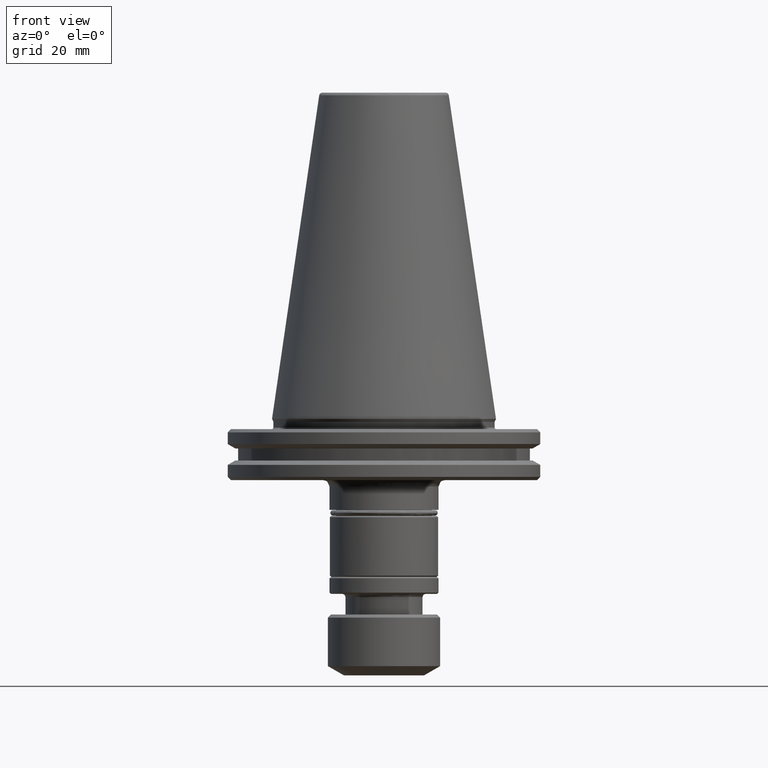
[diagram: clean part render]
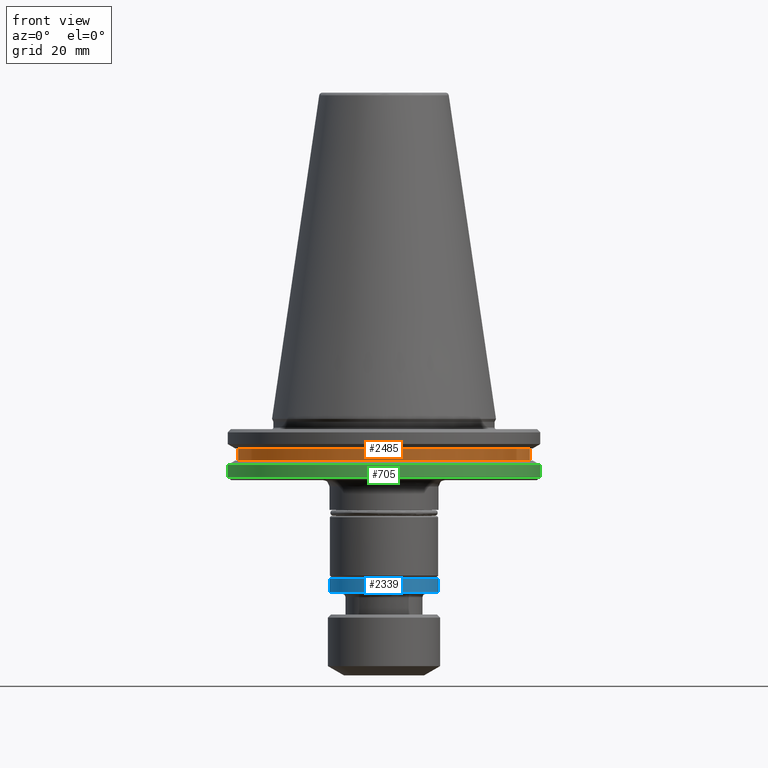
[diagram: same view with three faces highlighted in distinct colors, each labeled with its STEP entity id]
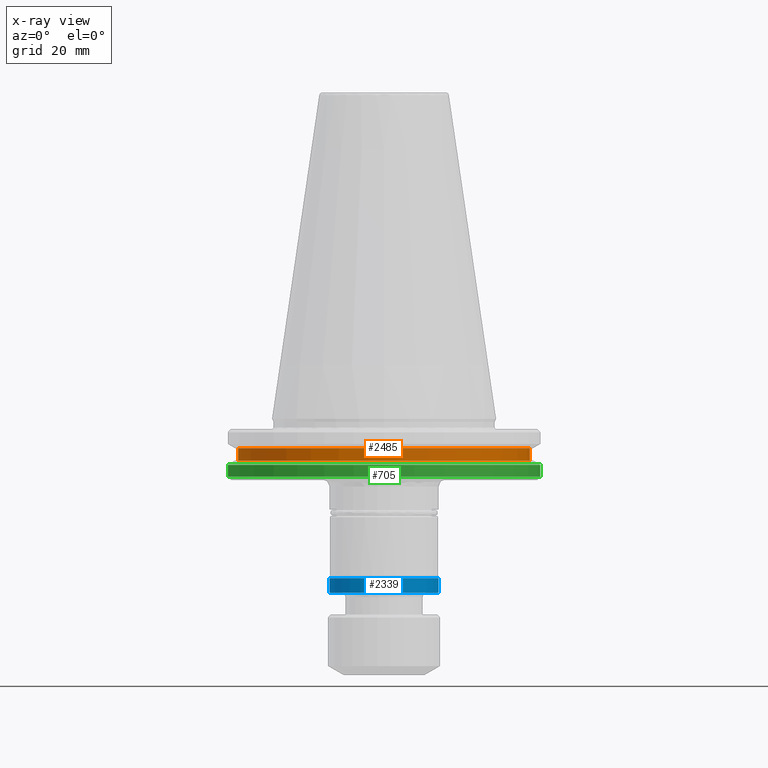
[diagram: x-ray of the same camera — body ghosted, the three highlighted faces saturated]
A machine part, front view with three faces highlighted in distinct colors.
The next image is the same camera in x-ray (body ghosted, the three faces saturated) — at least one of them is partly hidden behind the body in this view.
Their STEP definitions:

[orange] entity #2485 — the highlighted cylindrical surface (partial cylindrical patch) has radius 45.5 mm, axis along (0, 0, 1).
#37 = EDGE_CURVE ( 'NONE', #917, #1226, #1429, .T. ) ;
#168 = ORIENTED_EDGE ( 'NONE', *, *, #1249, .T. ) ;
#201 = LINE ( 'NONE', #1238, #1354 ) ;
#204 = CYLINDRICAL_SURFACE ( 'NONE', #544, 45.50000000000000000 ) ;
#268 = FACE_OUTER_BOUND ( 'NONE', #1695, .T. ) ;
#532 = DIRECTION ( 'NONE',  ( -0.0000000000000000000, -0.0000000000000000000, 1.000000000000000000 ) ) ;
#535 = EDGE_CURVE ( 'NONE', #917, #1349, #1254, .T. ) ;
#536 = DIRECTION ( 'NONE',  ( 1.000000000000000000, 0.0000000000000000000, 0.0000000000000000000 ) ) ;
#544 = AXIS2_PLACEMENT_3D ( 'NONE', #1808, #2478, #1952 ) ;
#568 = CARTESIAN_POINT ( 'NONE',  ( 0.0000000000000000000, 0.0000000000000000000, -12.97499999999995900 ) ) ;
#917 = VERTEX_POINT ( 'NONE', #1628 ) ;
#1160 = CARTESIAN_POINT ( 'NONE',  ( -45.50000000000121500, 5.572142936120605400E-015, -9.224999999999926800 ) ) ;
#1217 = ORIENTED_EDGE ( 'NONE', *, *, #37, .T. ) ;
#1226 = VERTEX_POINT ( 'NONE', #1261 ) ;
#1233 = CARTESIAN_POINT ( 'NONE',  ( 45.50000000000120800, 0.0000000000000000000, -9.224999999999926800 ) ) ;
#1238 = CARTESIAN_POINT ( 'NONE',  ( 45.50000000000000000, 0.0000000000000000000, 113.5216080541959500 ) ) ;
#1243 = DIRECTION ( 'NONE',  ( 0.0000000000000000000, 0.0000000000000000000, 1.000000000000000000 ) ) ;
#1249 = EDGE_CURVE ( 'NONE', #1226, #1270, #201, .T. ) ;
#1254 = LINE ( 'NONE', #2067, #2435 ) ;
#1261 = CARTESIAN_POINT ( 'NONE',  ( 45.50000000000120800, 0.0000000000000000000, -12.97499999999995900 ) ) ;
#1270 = VERTEX_POINT ( 'NONE', #1233 ) ;
#1348 = AXIS2_PLACEMENT_3D ( 'NONE', #2603, #2462, #2453 ) ;
#1349 = VERTEX_POINT ( 'NONE', #1160 ) ;
#1354 = VECTOR ( 'NONE', #1243, 1000.000000000000000 ) ;
#1429 = CIRCLE ( 'NONE', #1877, 45.50000000000120800 ) ;
#1628 = CARTESIAN_POINT ( 'NONE',  ( -45.50000000000121500, 5.572142936120605400E-015, -12.97499999999995900 ) ) ;
#1695 = EDGE_LOOP ( 'NONE', ( #2206, #1217, #168, #1724 ) ) ;
#1724 = ORIENTED_EDGE ( 'NONE', *, *, #2236, .F. ) ;
#1808 = CARTESIAN_POINT ( 'NONE',  ( 0.0000000000000000000, 0.0000000000000000000, 113.5216080541959500 ) ) ;
#1877 = AXIS2_PLACEMENT_3D ( 'NONE', #568, #532, #536 ) ;
#1952 = DIRECTION ( 'NONE',  ( 1.000000000000000000, 0.0000000000000000000, 0.0000000000000000000 ) ) ;
#2065 = DIRECTION ( 'NONE',  ( 0.0000000000000000000, 0.0000000000000000000, 1.000000000000000000 ) ) ;
#2067 = CARTESIAN_POINT ( 'NONE',  ( -45.50000000000000000, 5.572142936120457100E-015, 113.5216080541959500 ) ) ;
#2206 = ORIENTED_EDGE ( 'NONE', *, *, #535, .F. ) ;
#2236 = EDGE_CURVE ( 'NONE', #1349, #1270, #2363, .T. ) ;
#2363 = CIRCLE ( 'NONE', #1348, 45.50000000000120800 ) ;
#2435 = VECTOR ( 'NONE', #2065, 1000.000000000000000 ) ;
#2453 = DIRECTION ( 'NONE',  ( 1.000000000000000000, 0.0000000000000000000, 0.0000000000000000000 ) ) ;
#2462 = DIRECTION ( 'NONE',  ( -0.0000000000000000000, -0.0000000000000000000, 1.000000000000000000 ) ) ;
#2478 = DIRECTION ( 'NONE',  ( 0.0000000000000000000, 0.0000000000000000000, 1.000000000000000000 ) ) ;
#2485 = ADVANCED_FACE ( 'NONE', ( #268 ), #204, .T. ) ;
#2603 = CARTESIAN_POINT ( 'NONE',  ( 0.0000000000000000000, 0.0000000000000000000, -9.224999999999926800 ) ) ;

[blue] entity #2339 — the highlighted cylindrical surface (partial cylindrical patch) has radius 17 mm, axis along (0, 0, 1).
#136 = VERTEX_POINT ( 'NONE', #2509 ) ;
#140 = CIRCLE ( 'NONE', #397, 17.00000000000000000 ) ;
#166 = ORIENTED_EDGE ( 'NONE', *, *, #1297, .T. ) ;
#195 = CARTESIAN_POINT ( 'NONE',  ( 0.0000000000000000000, 0.0000000000000000000, 0.0000000000000000000 ) ) ;
#209 = DIRECTION ( 'NONE',  ( 0.0000000000000000000, 0.0000000000000000000, 1.000000000000000000 ) ) ;
#294 = AXIS2_PLACEMENT_3D ( 'NONE', #1024, #1022, #1020 ) ;
#301 = CARTESIAN_POINT ( 'NONE',  ( 0.0000000000000000000, 0.0000000000000000000, -54.20000000000001000 ) ) ;
#397 = AXIS2_PLACEMENT_3D ( 'NONE', #301, #1783, #527 ) ;
#463 = ORIENTED_EDGE ( 'NONE', *, *, #1516, .F. ) ;
#527 = DIRECTION ( 'NONE',  ( 1.000000000000000000, 0.0000000000000000000, 0.0000000000000000000 ) ) ;
#578 = AXIS2_PLACEMENT_3D ( 'NONE', #1208, #1207, #1204 ) ;
#635 = CARTESIAN_POINT ( 'NONE',  ( 0.0000000000000000000, -17.00000000000000000, -54.20000000000001000 ) ) ;
#638 = DIRECTION ( 'NONE',  ( 0.0000000000000000000, 0.0000000000000000000, 1.000000000000000000 ) ) ;
#639 = CARTESIAN_POINT ( 'NONE',  ( 17.00000000000000000, 0.0000000000000000000, 0.0000000000000000000 ) ) ;
#651 = ORIENTED_EDGE ( 'NONE', *, *, #2559, .T. ) ;
#654 = AXIS2_PLACEMENT_3D ( 'NONE', #195, #209, #1654 ) ;
#666 = CARTESIAN_POINT ( 'NONE',  ( 2.081899558550500300E-015, -17.00000000000000000, -49.70000000000001000 ) ) ;
#717 = AXIS2_PLACEMENT_3D ( 'NONE', #1260, #1259, #1258 ) ;
#722 = ORIENTED_EDGE ( 'NONE', *, *, #1205, .F. ) ;
#816 = DIRECTION ( 'NONE',  ( 0.0000000000000000000, 0.0000000000000000000, 1.000000000000000000 ) ) ;
#818 = CARTESIAN_POINT ( 'NONE',  ( -17.00000000000000000, 2.081899558550500300E-015, 0.0000000000000000000 ) ) ;
#824 = CARTESIAN_POINT ( 'NONE',  ( -17.00000000000000000, 2.081899558550500300E-015, -49.70000000000001000 ) ) ;
#831 = EDGE_LOOP ( 'NONE', ( #1504, #166, #651, #1767, #463, #722 ) ) ;
#856 = VERTEX_POINT ( 'NONE', #1673 ) ;
#858 = CIRCLE ( 'NONE', #578, 17.00000000000000000 ) ;
#966 = VECTOR ( 'NONE', #816, 1000.000000000000000 ) ;
#1020 = DIRECTION ( 'NONE',  ( -1.000000000000000000, 0.0000000000000000000, 0.0000000000000000000 ) ) ;
#1022 = DIRECTION ( 'NONE',  ( -0.0000000000000000000, -0.0000000000000000000, 1.000000000000000000 ) ) ;
#1024 = CARTESIAN_POINT ( 'NONE',  ( 0.0000000000000000000, 0.0000000000000000000, -49.70000000000001000 ) ) ;
#1053 = VECTOR ( 'NONE', #638, 1000.000000000000000 ) ;
#1056 = CIRCLE ( 'NONE', #294, 17.00000000000000000 ) ;
#1108 = CARTESIAN_POINT ( 'NONE',  ( 17.00000000000000000, 0.0000000000000000000, -49.70000000000001000 ) ) ;
#1204 = DIRECTION ( 'NONE',  ( 1.000000000000000000, 0.0000000000000000000, 0.0000000000000000000 ) ) ;
#1205 = EDGE_CURVE ( 'NONE', #1649, #2245, #2228, .T. ) ;
#1207 = DIRECTION ( 'NONE',  ( 0.0000000000000000000, 0.0000000000000000000, 1.000000000000000000 ) ) ;
#1208 = CARTESIAN_POINT ( 'NONE',  ( 0.0000000000000000000, 0.0000000000000000000, -54.20000000000001000 ) ) ;
#1258 = DIRECTION ( 'NONE',  ( -1.000000000000000000, 0.0000000000000000000, 0.0000000000000000000 ) ) ;
#1259 = DIRECTION ( 'NONE',  ( -0.0000000000000000000, -0.0000000000000000000, 1.000000000000000000 ) ) ;
#1260 = CARTESIAN_POINT ( 'NONE',  ( 0.0000000000000000000, 0.0000000000000000000, -49.70000000000001000 ) ) ;
#1297 = EDGE_CURVE ( 'NONE', #136, #1821, #858, .T. ) ;
#1456 = VERTEX_POINT ( 'NONE', #1108 ) ;
#1462 = LINE ( 'NONE', #818, #966 ) ;
#1504 = ORIENTED_EDGE ( 'NONE', *, *, #1657, .F. ) ;
#1516 = EDGE_CURVE ( 'NONE', #2245, #1456, #1056, .T. ) ;
#1649 = VERTEX_POINT ( 'NONE', #824 ) ;
#1654 = DIRECTION ( 'NONE',  ( 1.000000000000000000, 0.0000000000000000000, 0.0000000000000000000 ) ) ;
#1657 = EDGE_CURVE ( 'NONE', #136, #1649, #1462, .T. ) ;
#1673 = CARTESIAN_POINT ( 'NONE',  ( 17.00000000000000000, 0.0000000000000000000, -54.20000000000001000 ) ) ;
#1676 = FACE_OUTER_BOUND ( 'NONE', #831, .T. ) ;
#1767 = ORIENTED_EDGE ( 'NONE', *, *, #1784, .T. ) ;
#1783 = DIRECTION ( 'NONE',  ( 0.0000000000000000000, 0.0000000000000000000, 1.000000000000000000 ) ) ;
#1784 = EDGE_CURVE ( 'NONE', #856, #1456, #2099, .T. ) ;
#1821 = VERTEX_POINT ( 'NONE', #635 ) ;
#2099 = LINE ( 'NONE', #639, #1053 ) ;
#2228 = CIRCLE ( 'NONE', #717, 17.00000000000000000 ) ;
#2245 = VERTEX_POINT ( 'NONE', #666 ) ;
#2339 = ADVANCED_FACE ( 'NONE', ( #1676 ), #2586, .T. ) ;
#2509 = CARTESIAN_POINT ( 'NONE',  ( -17.00000000000000000, 2.081899558550500300E-015, -54.20000000000001000 ) ) ;
#2559 = EDGE_CURVE ( 'NONE', #1821, #856, #140, .T. ) ;
#2586 = CYLINDRICAL_SURFACE ( 'NONE', #654, 17.00000000000000000 ) ;

[green] entity #705 — the highlighted cylindrical surface (partial cylindrical patch) has radius 48.75 mm, axis along (0, 0, 1).
#67 = ORIENTED_EDGE ( 'NONE', *, *, #881, .F. ) ;
#420 = CIRCLE ( 'NONE', #805, 48.75000000000000000 ) ;
#436 = ORIENTED_EDGE ( 'NONE', *, *, #1129, .F. ) ;
#612 = EDGE_CURVE ( 'NONE', #1425, #1762, #809, .T. ) ;
#633 = CARTESIAN_POINT ( 'NONE',  ( -48.75000000000001400, 5.970153145843347900E-015, -14.34759526419166200 ) ) ;
#681 = CARTESIAN_POINT ( 'NONE',  ( 48.75000000000001400, 0.0000000000000000000, -14.34759526419166200 ) ) ;
#705 = ADVANCED_FACE ( 'NONE', ( #2474 ), #2563, .T. ) ;
#734 = CARTESIAN_POINT ( 'NONE',  ( -48.75000000000049700, 5.970153145843407900E-015, -18.09999999999950400 ) ) ;
#805 = AXIS2_PLACEMENT_3D ( 'NONE', #1379, #1377, #1372 ) ;
#809 = LINE ( 'NONE', #2015, #2415 ) ;
#811 = ORIENTED_EDGE ( 'NONE', *, *, #814, .T. ) ;
#814 = EDGE_CURVE ( 'NONE', #1734, #1425, #1919, .T. ) ;
#881 = EDGE_CURVE ( 'NONE', #1734, #1852, #968, .T. ) ;
#968 = LINE ( 'NONE', #1668, #1083 ) ;
#1083 = VECTOR ( 'NONE', #1663, 1000.000000000000000 ) ;
#1127 = CARTESIAN_POINT ( 'NONE',  ( 48.75000000000049700, 0.0000000000000000000, -18.09999999999950400 ) ) ;
#1129 = EDGE_CURVE ( 'NONE', #1852, #1762, #420, .T. ) ;
#1209 = AXIS2_PLACEMENT_3D ( 'NONE', #1696, #1693, #1692 ) ;
#1296 = AXIS2_PLACEMENT_3D ( 'NONE', #1853, #1887, #1871 ) ;
#1372 = DIRECTION ( 'NONE',  ( -1.000000000000000000, 0.0000000000000000000, 0.0000000000000000000 ) ) ;
#1377 = DIRECTION ( 'NONE',  ( -0.0000000000000000000, -0.0000000000000000000, 1.000000000000000000 ) ) ;
#1379 = CARTESIAN_POINT ( 'NONE',  ( 0.0000000000000000000, 0.0000000000000000000, -14.34759526419166200 ) ) ;
#1425 = VERTEX_POINT ( 'NONE', #1127 ) ;
#1453 = EDGE_LOOP ( 'NONE', ( #67, #811, #1739, #436 ) ) ;
#1663 = DIRECTION ( 'NONE',  ( 0.0000000000000000000, 0.0000000000000000000, 1.000000000000000000 ) ) ;
#1668 = CARTESIAN_POINT ( 'NONE',  ( -48.75000000000000000, 5.970153145843347100E-015, 113.5216080541959500 ) ) ;
#1692 = DIRECTION ( 'NONE',  ( 1.000000000000000000, 0.0000000000000000000, 0.0000000000000000000 ) ) ;
#1693 = DIRECTION ( 'NONE',  ( -0.0000000000000000000, -0.0000000000000000000, 1.000000000000000000 ) ) ;
#1696 = CARTESIAN_POINT ( 'NONE',  ( 0.0000000000000000000, 0.0000000000000000000, -18.09999999999950400 ) ) ;
#1734 = VERTEX_POINT ( 'NONE', #734 ) ;
#1739 = ORIENTED_EDGE ( 'NONE', *, *, #612, .T. ) ;
#1762 = VERTEX_POINT ( 'NONE', #681 ) ;
#1852 = VERTEX_POINT ( 'NONE', #633 ) ;
#1853 = CARTESIAN_POINT ( 'NONE',  ( 0.0000000000000000000, 0.0000000000000000000, 113.5216080541959500 ) ) ;
#1871 = DIRECTION ( 'NONE',  ( 1.000000000000000000, 0.0000000000000000000, 0.0000000000000000000 ) ) ;
#1887 = DIRECTION ( 'NONE',  ( 0.0000000000000000000, 0.0000000000000000000, 1.000000000000000000 ) ) ;
#1919 = CIRCLE ( 'NONE', #1209, 48.75000000000118000 ) ;
#2015 = CARTESIAN_POINT ( 'NONE',  ( 48.75000000000000000, 0.0000000000000000000, 113.5216080541959500 ) ) ;
#2035 = DIRECTION ( 'NONE',  ( 0.0000000000000000000, 0.0000000000000000000, 1.000000000000000000 ) ) ;
#2415 = VECTOR ( 'NONE', #2035, 1000.000000000000000 ) ;
#2474 = FACE_OUTER_BOUND ( 'NONE', #1453, .T. ) ;
#2563 = CYLINDRICAL_SURFACE ( 'NONE', #1296, 48.75000000000000000 ) ;